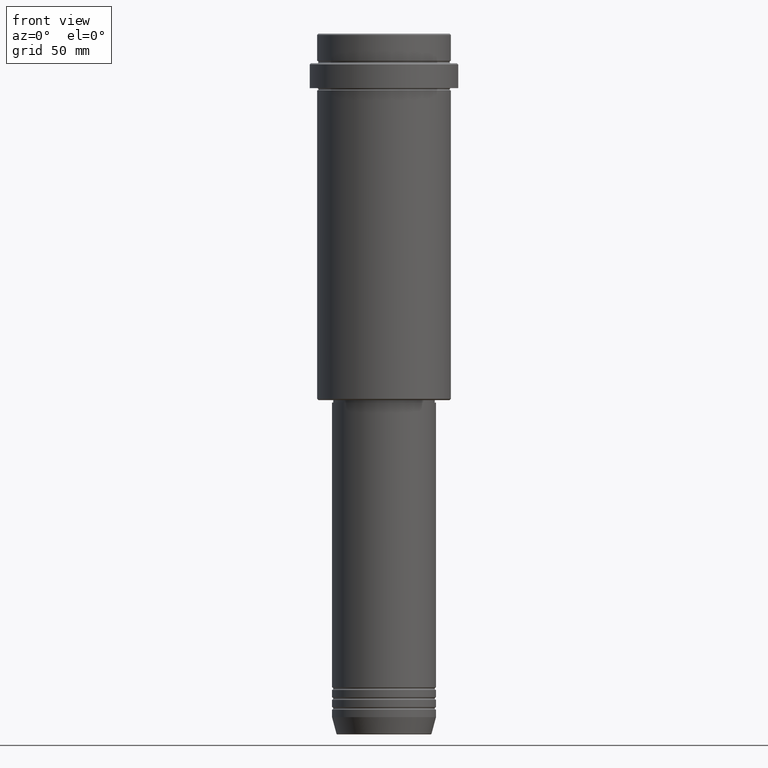
[diagram: clean part render]
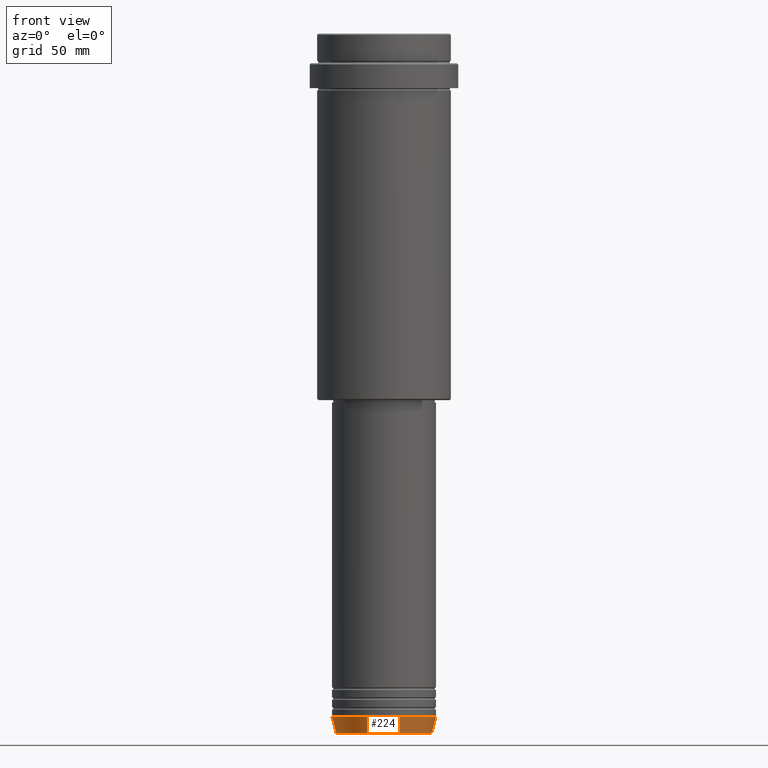
[diagram: same view with one face highlighted and labeled with its STEP entity id]
A machine part, front view. The second image highlights one B-rep face of the part: STEP entity #224.
In plain terms, the highlighted conical surface has half-angle 15 deg.
Its self-contained STEP definition (entity closure, byte-faithful):
#7 = AXIS2_PLACEMENT_3D ( 'NONE', #533, #760, #1127 ) ;
#25 = CIRCLE ( 'NONE', #7, 19.22365507213719127 ) ;
#49 = AXIS2_PLACEMENT_3D ( 'NONE', #1323, #111, #339 ) ;
#85 = EDGE_CURVE ( 'NONE', #1246, #627, #775, .T. ) ;
#93 = VERTEX_POINT ( 'NONE', #736 ) ;
#111 = DIRECTION ( 'NONE',  ( -0.000000000000000000, -0.000000000000000000, 1.000000000000000000 ) ) ;
#153 = CARTESIAN_POINT ( 'NONE',  ( -21.00000000000000000, 2.571758278209441661E-15, -276.0000000000000000 ) ) ;
#184 = ORIENTED_EDGE ( 'NONE', *, *, #1303, .T. ) ;
#224 = ADVANCED_FACE ( 'NONE', ( #653 ), #1221, .T. ) ;
#339 = DIRECTION ( 'NONE',  ( 1.000000000000000000, 0.000000000000000000, 0.000000000000000000 ) ) ;
#416 = VECTOR ( 'NONE', #1263, 1000.000000000000000 ) ;
#494 = ORIENTED_EDGE ( 'NONE', *, *, #85, .F. ) ;
#533 = CARTESIAN_POINT ( 'NONE',  ( 0.000000000000000000, 0.000000000000000000, -282.6294095225512706 ) ) ;
#553 = CARTESIAN_POINT ( 'NONE',  ( -19.22365507213719127, 2.462988521705001050E-15, -282.6294095225512706 ) ) ;
#574 = ORIENTED_EDGE ( 'NONE', *, *, #783, .F. ) ;
#584 = LINE ( 'NONE', #153, #993 ) ;
#627 = VERTEX_POINT ( 'NONE', #1212 ) ;
#639 = CARTESIAN_POINT ( 'NONE',  ( 0.000000000000000000, 0.000000000000000000, -276.0000000000000000 ) ) ;
#653 = FACE_OUTER_BOUND ( 'NONE', #999, .T. ) ;
#681 = VERTEX_POINT ( 'NONE', #553 ) ;
#721 = CARTESIAN_POINT ( 'NONE',  ( 21.00000000000000000, 0.000000000000000000, -276.0000000000000000 ) ) ;
#727 = EDGE_CURVE ( 'NONE', #681, #93, #25, .T. ) ;
#736 = CARTESIAN_POINT ( 'NONE',  ( 19.22365507213719127, 0.000000000000000000, -282.6294095225512706 ) ) ;
#760 = DIRECTION ( 'NONE',  ( -0.000000000000000000, -0.000000000000000000, 1.000000000000000000 ) ) ;
#775 = CIRCLE ( 'NONE', #1012, 21.00000000000000000 ) ;
#783 = EDGE_CURVE ( 'NONE', #681, #1246, #584, .T. ) ;
#843 = CARTESIAN_POINT ( 'NONE',  ( -21.00000000000000000, 2.571758278209441661E-15, -276.0000000000000000 ) ) ;
#915 = ORIENTED_EDGE ( 'NONE', *, *, #727, .T. ) ;
#993 = VECTOR ( 'NONE', #1028, 1000.000000000000000 ) ;
#999 = EDGE_LOOP ( 'NONE', ( #574, #915, #184, #494 ) ) ;
#1012 = AXIS2_PLACEMENT_3D ( 'NONE', #639, #1369, #1191 ) ;
#1028 = DIRECTION ( 'NONE',  ( -0.2588190451025213501, 3.169619151431772337E-17, 0.9659258262890680902 ) ) ;
#1127 = DIRECTION ( 'NONE',  ( 1.000000000000000000, 0.000000000000000000, 0.000000000000000000 ) ) ;
#1185 = LINE ( 'NONE', #721, #416 ) ;
#1191 = DIRECTION ( 'NONE',  ( 1.000000000000000000, 0.000000000000000000, 0.000000000000000000 ) ) ;
#1212 = CARTESIAN_POINT ( 'NONE',  ( 21.00000000000000000, 0.000000000000000000, -276.0000000000000000 ) ) ;
#1221 = CONICAL_SURFACE ( 'NONE', #49, 21.00000000000000000, 0.2617993877991500740 ) ;
#1246 = VERTEX_POINT ( 'NONE', #843 ) ;
#1263 = DIRECTION ( 'NONE',  ( 0.2588190451025213501, 0.000000000000000000, 0.9659258262890680902 ) ) ;
#1303 = EDGE_CURVE ( 'NONE', #93, #627, #1185, .T. ) ;
#1323 = CARTESIAN_POINT ( 'NONE',  ( 0.000000000000000000, 0.000000000000000000, -276.0000000000000000 ) ) ;
#1369 = DIRECTION ( 'NONE',  ( -0.000000000000000000, -0.000000000000000000, 1.000000000000000000 ) ) ;